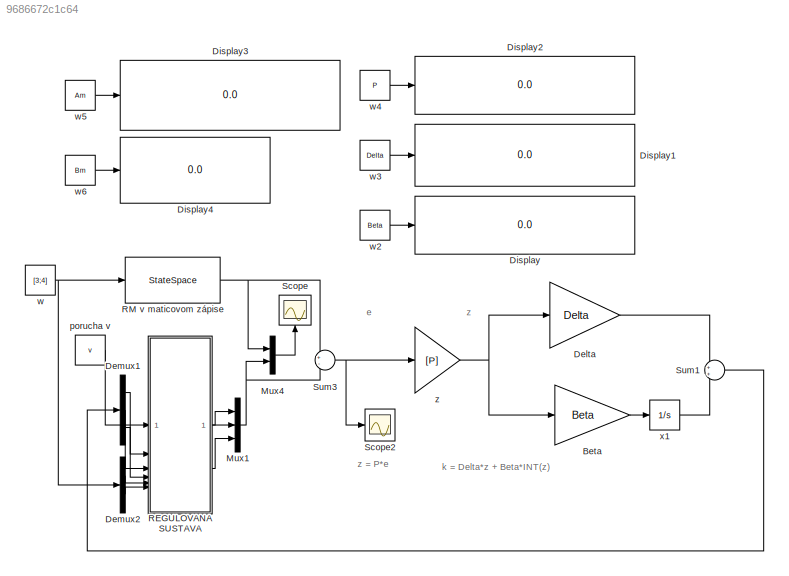
MODEL slx_9686672c1c64
KIND model
CONFIG AbsTol = 1e-5
CONFIG EnableMultiTasking = on
CONFIG FixedStep = auto
CONFIG MaxStep = auto
CONFIG MinStep = auto
CONFIG RelTol = 1e-5
CONFIG SampleTimeConstraint = Unconstrained
CONFIG SolverName = ode45
CONFIG StartTime = 0.0
CONFIG StopTime = 15
WORKSPACE source: mxarray member
WORKSPACE Am = [-1.66666666667 0 0 0 0 -0.444444444444 0 1 -1.33333333333]
WORKSPACE Beta = [50 0 0 0 50 0 0 0 50]
WORKSPACE Bm = [1.66666666667 0 0 0 0 0.444444444444]
WORKSPACE Delta = [10 0 0 0 10 0 0 0 10]
WORKSPACE P = [-30 -16.3265306122 61.2244897959 -16.3265306122 -18.5416666667 -1.125 61.2244897959 -1.125 -38.34375]
WORKSPACE T1 = 0.6
WORKSPACE T2 = 1.5
WORKSPACE a1 = -0.99
WORKSPACE b1 = -3.44
WORKSPACE c1 = 0.03
WORKSPACE d1 = 2.06
WORKSPACE e1 = -0.37
WORKSPACE v = -0.32
BLOCK [Gain] Beta
  Gain = Beta
  Multiplication = Matrix(K*u)
  OutDataTypeStr = Inherit: Same as input
  ParamDataTypeStr = Inherit: Same as input
  SaturateOnIntegerOverflow = on
BLOCK [Gain] Delta
  Gain = Delta
  Multiplication = Matrix(K*u)
  OutDataTypeStr = Inherit: Same as input
  ParamDataTypeStr = Inherit: Same as input
  SaturateOnIntegerOverflow = on
BLOCK [Demux] Demux1
  Outputs = 3
BLOCK [Demux] Demux2
  Outputs = 2
BLOCK [Display] Display
  Decimation = 1
BLOCK [Display] Display1
  Decimation = 1
BLOCK [Display] Display2
  Decimation = 1
BLOCK [Display] Display3
  Decimation = 1
BLOCK [Display] Display4
  Decimation = 1
BLOCK [Mux] Mux1
  DisplayOption = bar
  Inputs = 3
BLOCK [Mux] Mux4
  DisplayOption = bar
  Inputs = 2
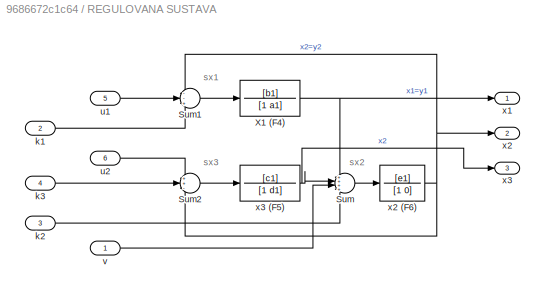
BLOCK [SubSystem] REGULOVANA SUSTAVA
BLOCK [Sum] REGULOVANA SUSTAVA/Sum
  Inputs = ++++
BLOCK [Sum] REGULOVANA SUSTAVA/Sum1
  Inputs = --+
BLOCK [Sum] REGULOVANA SUSTAVA/Sum2
  Inputs = ++-
BLOCK [TransferFcn] REGULOVANA SUSTAVA/X1 (F4)
  Denominator = [1 a1]
  Numerator = [b1]
BLOCK [Inport] REGULOVANA SUSTAVA/k1
  Port = 2
BLOCK [Inport] REGULOVANA SUSTAVA/k2
  Port = 3
BLOCK [Inport] REGULOVANA SUSTAVA/k3
  Port = 4
BLOCK [Inport] REGULOVANA SUSTAVA/u1
  Port = 5
BLOCK [Inport] REGULOVANA SUSTAVA/u2
  Port = 6
BLOCK [Inport] REGULOVANA SUSTAVA/v
BLOCK [Outport] REGULOVANA SUSTAVA/x1
BLOCK [Outport] REGULOVANA SUSTAVA/x2
  Port = 2
BLOCK [TransferFcn] REGULOVANA SUSTAVA/x2 (F6)
  Denominator = [1 0]
  Numerator = [e1]
BLOCK [Outport] REGULOVANA SUSTAVA/x3
  Port = 3
BLOCK [TransferFcn] REGULOVANA SUSTAVA/x3 (F5)
  Denominator = [1 d1]
  Numerator = [c1]
BLOCK [StateSpace] RM v maticovom zápise
  A = [-1/T1 0 0; 0 0 1; 0 -1/T2^2 -2/T2]
  B = [1/T1 0; 0 0; 0 1/T2^2]
  C = [1 0 0;0 1 0; 0 0 1]
  D = [0 0;0 0;0 0]
  InitialCondition = 0
BLOCK [Scope] Scope
  Floating = off
  NameLocation = right
  NumInputPorts = 1
  ScopeSpecificationString = Simulink.scopes.TimeScopeBlockCfg('CurrentConfiguration', extmgr.ConfigurationSet(extmgr.Configuration('Core','General UI',true,'FigureColor',[1 1 1]),extmgr.Configuration('Core','Source UI',true),extmgr.Configuration('Sources','WiredSimulink',true,'DataLoggingVariableName','ScopeData2'),extmgr.Configuration('Visuals','Time Domain',true,'PlotType','Line','SerializedDisplays',{struct('MinYLimReal',...<+2224ch>
BLOCK [Scope] Scope2
  Floating = off
  NumInputPorts = 1
  ScopeSpecificationString = Simulink.scopes.TimeScopeBlockCfg('CurrentConfiguration', extmgr.ConfigurationSet(extmgr.Configuration('Core','General UI',true),extmgr.Configuration('Core','Source UI',true),extmgr.Configuration('Sources','WiredSimulink',true,'DataLoggingVariableName','ScopeData2'),extmgr.Configuration('Visuals','Time Domain',true,'SerializedDisplays',{struct('MinYLimReal','-7.68674','MaxYLimReal','7.43205','YLab...<+1793ch>
BLOCK [Sum] Sum1
  SaturateOnIntegerOverflow = on
BLOCK [Sum] Sum3
  Inputs = +-
  SaturateOnIntegerOverflow = on
BLOCK [Constant] porucha v
  Value = v
BLOCK [Constant] w
  Value = [3;4]
BLOCK [Constant] w2
  Value = Beta
BLOCK [Constant] w3
  Value = Delta
BLOCK [Constant] w4
  Value = P
BLOCK [Constant] w5
  Value = Am
BLOCK [Constant] w6
  Value = Bm
BLOCK [Integrator] x1
BLOCK [Gain] z
  Gain = [P]
  Multiplication = Matrix(K*u)
  OutDataTypeStr = Inherit: Same as input
  ParamDataTypeStr = Inherit: Same as input
  SaturateOnIntegerOverflow = on
ANNOTATION (root): z = P * e
ANNOTATION (root): k = Delta * z + Beta *INT(z)
ANNOTATION (root): e
ANNOTATION (root): z
ANNOTATION REGULOVANA SUSTAVA: sx1
ANNOTATION REGULOVANA SUSTAVA: sx2
ANNOTATION REGULOVANA SUSTAVA: sx3
LINE Beta:1 -> x1:1
LINE Delta:1 -> Sum1:1
LINE Demux1:1 -> REGULOVANA SUSTAVA:2
LINE Demux1:2 -> REGULOVANA SUSTAVA:3
LINE Demux1:3 -> REGULOVANA SUSTAVA:4
LINE Demux2:1 -> REGULOVANA SUSTAVA:5
LINE Demux2:2 -> REGULOVANA SUSTAVA:6
NET Mux1:1 -> Mux4:2, Sum3:2
LINE Mux4:1 -> Scope:1
LINE REGULOVANA SUSTAVA/Sum1:1 -> REGULOVANA SUSTAVA/X1 (F4):1
LINE REGULOVANA SUSTAVA/Sum2:1 -> REGULOVANA SUSTAVA/x3 (F5):1
LINE REGULOVANA SUSTAVA/Sum:1 -> REGULOVANA SUSTAVA/x2 (F6):1
NET REGULOVANA SUSTAVA/X1 (F4):1 -> REGULOVANA SUSTAVA/Sum:1, REGULOVANA SUSTAVA/x1:1
LINE REGULOVANA SUSTAVA/k1:1 -> REGULOVANA SUSTAVA/Sum1:3
LINE REGULOVANA SUSTAVA/k2:1 -> REGULOVANA SUSTAVA/Sum:4
LINE REGULOVANA SUSTAVA/k3:1 -> REGULOVANA SUSTAVA/Sum2:2
LINE REGULOVANA SUSTAVA/u1:1 -> REGULOVANA SUSTAVA/Sum1:2
LINE REGULOVANA SUSTAVA/u2:1 -> REGULOVANA SUSTAVA/Sum2:1
LINE REGULOVANA SUSTAVA/v:1 -> REGULOVANA SUSTAVA/Sum:3
NET REGULOVANA SUSTAVA/x2 (F6):1 -> REGULOVANA SUSTAVA/Sum1:1, REGULOVANA SUSTAVA/Sum2:3, REGULOVANA SUSTAVA/x2:1
NET REGULOVANA SUSTAVA/x3 (F5):1 -> REGULOVANA SUSTAVA/Sum:2, REGULOVANA SUSTAVA/x3:1
LINE REGULOVANA SUSTAVA:1 -> Mux1:1
LINE REGULOVANA SUSTAVA:2 -> Mux1:2
LINE REGULOVANA SUSTAVA:3 -> Mux1:3
NET RM v maticovom zápise:1 -> Mux4:1, Sum3:1
LINE Sum1:1 -> Demux1:1
NET Sum3:1 -> Scope2:1, z:1
LINE porucha v:1 -> REGULOVANA SUSTAVA:1
LINE w2:1 -> Display:1
LINE w3:1 -> Display1:1
LINE w4:1 -> Display2:1
LINE w5:1 -> Display3:1
LINE w6:1 -> Display4:1
NET w:1 -> Demux2:1, RM v maticovom zápise:1
LINE x1:1 -> Sum1:2
NET z:1 -> Beta:1, Delta:1
note: NET lines group one-source signal fan-out (src -> all destinations, sorted); 1:1 wires keep LINE
